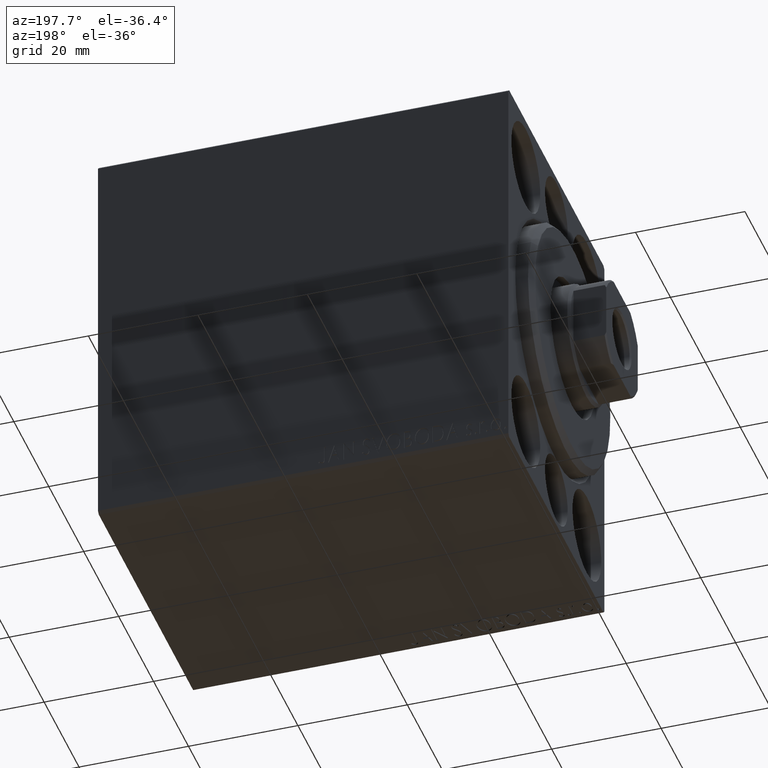
[diagram: clean part render]
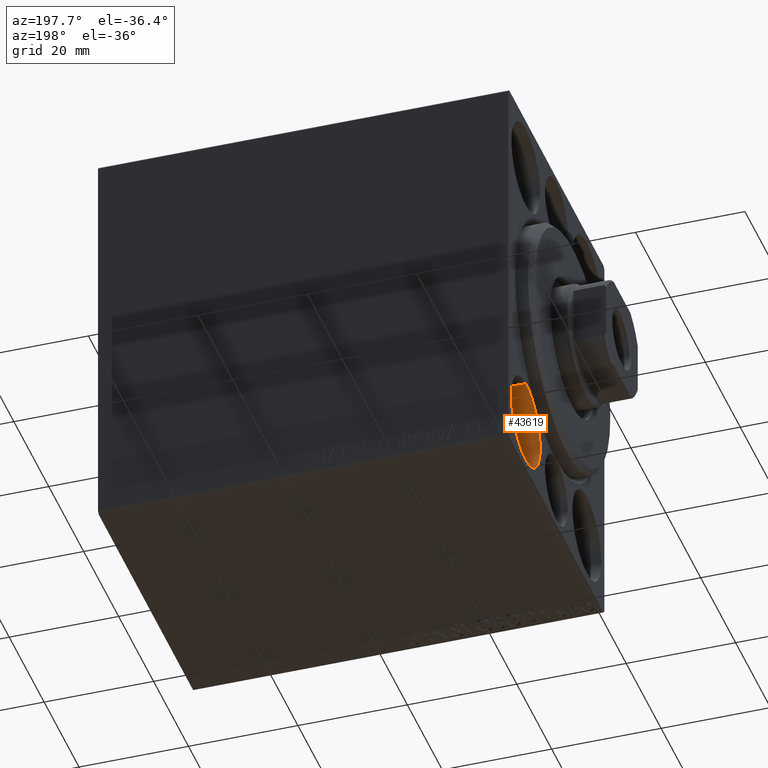
[diagram: same view with one face highlighted and labeled with its STEP entity id]
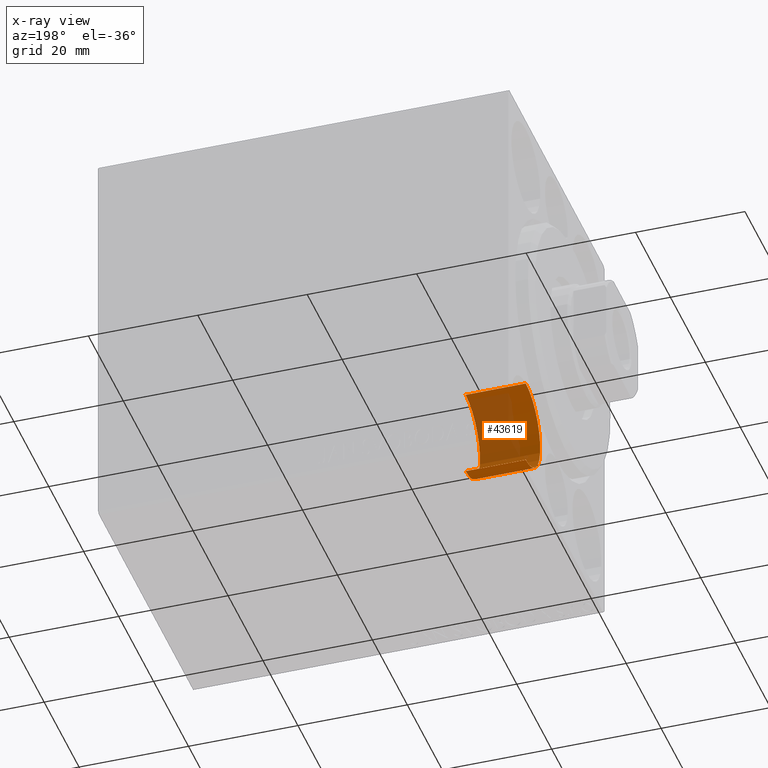
[diagram: x-ray of the same camera — body ghosted, the highlighted face saturated]
A machine part, auxiliary view. The second image highlights one B-rep face of the part: STEP entity #43619.
The next image is the same camera in x-ray: the body ghosted, the highlighted face saturated — about 49% of this face is hidden behind the body in this view.
In plain terms, the highlighted cylindrical surface (partial cylindrical patch) has radius 8.25 mm, axis along (-1, -0, -0).
Its self-contained STEP definition (entity closure, byte-faithful):
#166 = VERTEX_POINT ( 'NONE', #29800 ) ;
#1709 = CARTESIAN_POINT ( 'NONE',  ( 11.00000000000000000, 17.49999999999999645, -19.25000000000000355 ) ) ;
#1998 = VECTOR ( 'NONE', #14092, 1000.000000000000000 ) ;
#3036 = EDGE_CURVE ( 'NONE', #18841, #17958, #17177, .T. ) ;
#3250 = FACE_OUTER_BOUND ( 'NONE', #13719, .T. ) ;
#3752 = CARTESIAN_POINT ( 'NONE',  ( 11.00000000000000000, 17.49999999999999645, -27.50000000000000355 ) ) ;
#7626 = CARTESIAN_POINT ( 'NONE',  ( 11.00000000000000000, 17.49999999999999645, -19.25000000000000355 ) ) ;
#11799 = ORIENTED_EDGE ( 'NONE', *, *, #27582, .F. ) ;
#12008 = VECTOR ( 'NONE', #41864, 1000.000000000000000 ) ;
#12390 = ORIENTED_EDGE ( 'NONE', *, *, #3036, .F. ) ;
#12791 = CARTESIAN_POINT ( 'NONE',  ( 0.000000000000000000, 17.49999999999999645, -19.25000000000000355 ) ) ;
#13619 = DIRECTION ( 'NONE',  ( -1.000000000000000000, -0.000000000000000000, -0.000000000000000000 ) ) ;
#13719 = EDGE_LOOP ( 'NONE', ( #12390, #22838, #19154, #11799 ) ) ;
#13900 = DIRECTION ( 'NONE',  ( -1.000000000000000000, 0.000000000000000000, 0.000000000000000000 ) ) ;
#14092 = DIRECTION ( 'NONE',  ( -1.000000000000000000, -0.000000000000000000, -0.000000000000000000 ) ) ;
#14844 = CIRCLE ( 'NONE', #24028, 8.250000000000000000 ) ;
#17177 = CIRCLE ( 'NONE', #34113, 8.250000000000000000 ) ;
#17229 = DIRECTION ( 'NONE',  ( -1.000000000000000000, 0.000000000000000000, 0.000000000000000000 ) ) ;
#17443 = CARTESIAN_POINT ( 'NONE',  ( 0.000000000000000000, 17.49999999999999645, -27.50000000000000355 ) ) ;
#17602 = DIRECTION ( 'NONE',  ( 0.000000000000000000, 0.000000000000000000, 1.000000000000000000 ) ) ;
#17958 = VERTEX_POINT ( 'NONE', #1709 ) ;
#18841 = VERTEX_POINT ( 'NONE', #35958 ) ;
#19154 = ORIENTED_EDGE ( 'NONE', *, *, #26950, .T. ) ;
#20762 = DIRECTION ( 'NONE',  ( 0.000000000000000000, 0.000000000000000000, 1.000000000000000000 ) ) ;
#21459 = EDGE_CURVE ( 'NONE', #18841, #166, #30666, .T. ) ;
#22838 = ORIENTED_EDGE ( 'NONE', *, *, #21459, .T. ) ;
#23727 = AXIS2_PLACEMENT_3D ( 'NONE', #26881, #13619, #17602 ) ;
#24028 = AXIS2_PLACEMENT_3D ( 'NONE', #17443, #13900, #37549 ) ;
#25999 = VERTEX_POINT ( 'NONE', #12791 ) ;
#26881 = CARTESIAN_POINT ( 'NONE',  ( 11.00000000000000000, 17.49999999999999645, -27.50000000000000355 ) ) ;
#26950 = EDGE_CURVE ( 'NONE', #166, #25999, #14844, .T. ) ;
#27582 = EDGE_CURVE ( 'NONE', #17958, #25999, #28370, .T. ) ;
#28370 = LINE ( 'NONE', #7626, #12008 ) ;
#29800 = CARTESIAN_POINT ( 'NONE',  ( 0.000000000000000000, 17.49999999999999645, -35.75000000000000711 ) ) ;
#30417 = CYLINDRICAL_SURFACE ( 'NONE', #23727, 8.250000000000000000 ) ;
#30666 = LINE ( 'NONE', #33550, #1998 ) ;
#33550 = CARTESIAN_POINT ( 'NONE',  ( 11.00000000000000000, 17.49999999999999645, -35.75000000000000711 ) ) ;
#34113 = AXIS2_PLACEMENT_3D ( 'NONE', #3752, #17229, #20762 ) ;
#35958 = CARTESIAN_POINT ( 'NONE',  ( 11.00000000000000000, 17.49999999999999645, -35.75000000000000711 ) ) ;
#37549 = DIRECTION ( 'NONE',  ( 0.000000000000000000, 0.000000000000000000, 1.000000000000000000 ) ) ;
#41864 = DIRECTION ( 'NONE',  ( -1.000000000000000000, -0.000000000000000000, -0.000000000000000000 ) ) ;
#43619 = ADVANCED_FACE ( 'NONE', ( #3250 ), #30417, .F. ) ;